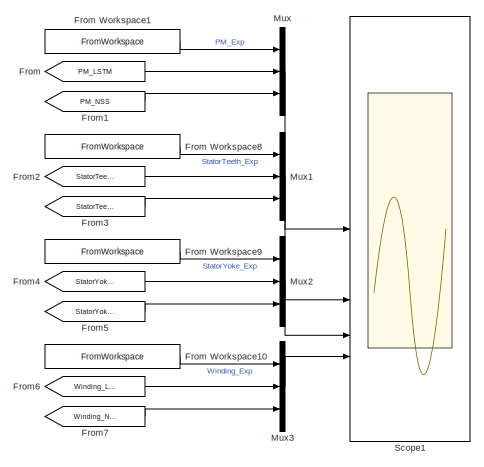
[diagram: root canvas - part 1/2, right side, full height]
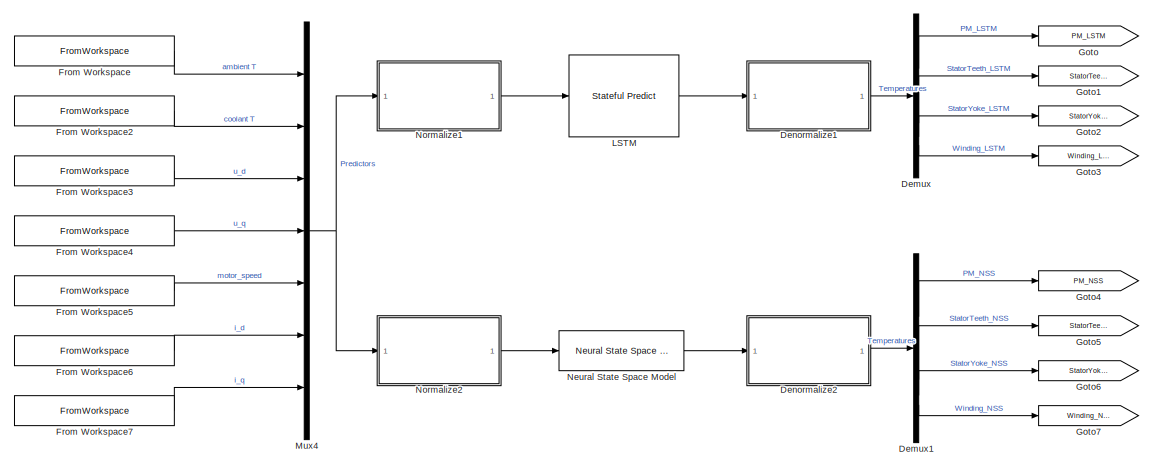
[diagram: root canvas - part 2/2, center side, full height]
MODEL slx_0a55b1d5f001
KIND model
CONFIG AbsTol = auto
CONFIG EnableMultiTasking = off
CONFIG FixedStep = 0.5
CONFIG MaxStep = auto
CONFIG MinStep = auto
CONFIG PreLoadFcn = % Load the Test data set for verification\nload Data\pmsm_temperature_data_large.mat;\n\n% Picking up a test profile for verification\nTestSet = timetables{57};\n\n% Seperate the predictors and the response\nTestSet_Predict = TestSet(:,1:7);\nTestSet_Response = TestSet(:,8:11);\n\n% Clear the original data to avoid duplication\nclear TestSet;\nclear timetables;\n\n% Load the trained LSTM and NSS Model\nload Mode...<+794ch>
CONFIG RelTol = 1e-3
CONFIG SampleTimeConstraint = Unconstrained
CONFIG SolverName = FixedStepAuto
CONFIG StartTime = 0
CONFIG StopTime = 5000
WORKSPACE source: mxarray member
WORKSPACE time = -1
BLOCK [Demux] Demux
BLOCK [Demux] Demux1
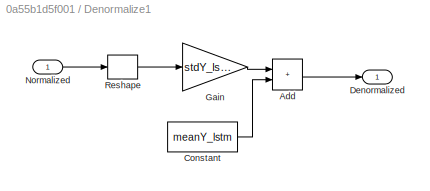
BLOCK [SubSystem] Denormalize1
BLOCK [Sum] Denormalize1/Add
  IconShape = rectangular
BLOCK [Constant] Denormalize1/Constant
  Value = meanY_lstm
BLOCK [Outport] Denormalize1/Denormalized
BLOCK [Gain] Denormalize1/Gain
  Gain = stdY_lstm
  OutDataTypeStr = single
BLOCK [Inport] Denormalize1/Normalized
BLOCK [Reshape] Denormalize1/Reshape
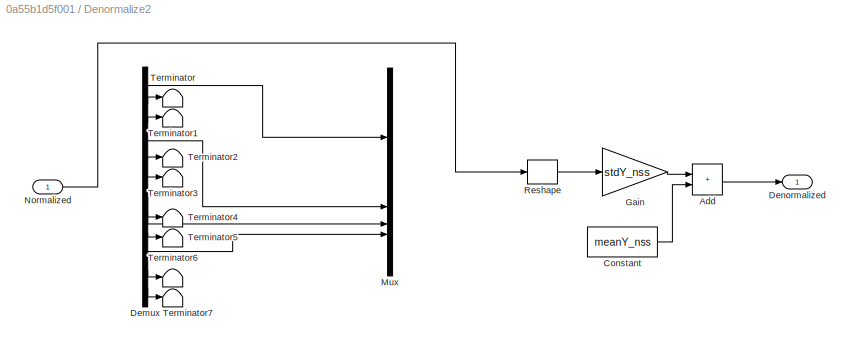
BLOCK [SubSystem] Denormalize2
BLOCK [Sum] Denormalize2/Add
  IconShape = rectangular
BLOCK [Constant] Denormalize2/Constant
  Value = meanY_nss
BLOCK [Demux] Denormalize2/Demux
  Outputs = 12
BLOCK [Outport] Denormalize2/Denormalized
BLOCK [Gain] Denormalize2/Gain
  Gain = stdY_nss
  OutDataTypeStr = single
BLOCK [Mux] Denormalize2/Mux
  DisplayOption = bar
BLOCK [Inport] Denormalize2/Normalized
BLOCK [Reshape] Denormalize2/Reshape
BLOCK [Terminator] Denormalize2/Terminator
BLOCK [Terminator] Denormalize2/Terminator1
BLOCK [Terminator] Denormalize2/Terminator2
BLOCK [Terminator] Denormalize2/Terminator3
BLOCK [Terminator] Denormalize2/Terminator4
BLOCK [Terminator] Denormalize2/Terminator5
BLOCK [Terminator] Denormalize2/Terminator6
BLOCK [Terminator] Denormalize2/Terminator7
BLOCK [From] From
  GotoTag = PM_LSTM
BLOCK [FromWorkspace] From Workspace
  VariableName = TestSet_Predict(:,1)
BLOCK [FromWorkspace] From Workspace1
  SampleTime = 5
  VariableName = TestSet_Response(:,1)
BLOCK [FromWorkspace] From Workspace10
  SampleTime = 5
  VariableName = TestSet_Response(:,4)
BLOCK [FromWorkspace] From Workspace2
  VariableName = TestSet_Predict(:,2)
BLOCK [FromWorkspace] From Workspace3
  VariableName = TestSet_Predict(:,3)
BLOCK [FromWorkspace] From Workspace4
  VariableName = TestSet_Predict(:,4)
BLOCK [FromWorkspace] From Workspace5
  VariableName = TestSet_Predict(:,5)
BLOCK [FromWorkspace] From Workspace6
  VariableName = TestSet_Predict(:,6)
BLOCK [FromWorkspace] From Workspace7
  VariableName = TestSet_Predict(:,7)
BLOCK [FromWorkspace] From Workspace8
  SampleTime = 5
  VariableName = TestSet_Response(:,2)
BLOCK [FromWorkspace] From Workspace9
  SampleTime = 5
  VariableName = TestSet_Response(:,3)
BLOCK [From] From1
  GotoTag = PM_NSS
BLOCK [From] From2
  GotoTag = StatorTeeth_LSTM
BLOCK [From] From3
  GotoTag = StatorTeeth_NSS
BLOCK [From] From4
  GotoTag = StatorYoke_LSTM
BLOCK [From] From5
  GotoTag = StatorYoke_NSS
BLOCK [From] From6
  GotoTag = Winding_LSTM
BLOCK [From] From7
  GotoTag = Winding_NSS
BLOCK [Goto] Goto
  GotoTag = PM_LSTM
BLOCK [Goto] Goto1
  GotoTag = StatorTeeth_LSTM
BLOCK [Goto] Goto2
  GotoTag = StatorYoke_LSTM
BLOCK [Goto] Goto3
  GotoTag = Winding_LSTM
BLOCK [Goto] Goto4
  GotoTag = PM_NSS
BLOCK [Goto] Goto5
  GotoTag = StatorTeeth_NSS
BLOCK [Goto] Goto6
  GotoTag = StatorYoke_NSS
BLOCK [Goto] Goto7
  GotoTag = Winding_NSS
BLOCK [Reference] LSTM  REF=deeplib/Stateful Predict
  SourceBlock = deeplib/Stateful Predict
  SourceType = Stateful Predict
BLOCK [Mux] Mux
  DisplayOption = bar
  Inputs = 3
BLOCK [Mux] Mux1
  DisplayOption = bar
  Inputs = 3
BLOCK [Mux] Mux2
  DisplayOption = bar
  Inputs = 3
BLOCK [Mux] Mux3
  DisplayOption = bar
  Inputs = 3
BLOCK [Mux] Mux4
  DisplayOption = bar
  Inputs = 7
BLOCK [Reference] Neural State Space Model  REF=slident/Models/Neural State Space Model  (lib defined in mdl_f7d4911ca73a)
  SourceBlock = slident/Models/Neural State Space Model
  SourceType = Neural State Space Model
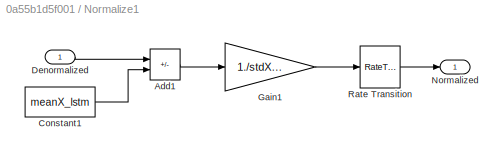
BLOCK [SubSystem] Normalize1
BLOCK [Sum] Normalize1/Add1
  IconShape = rectangular
  Inputs = +-
BLOCK [Constant] Normalize1/Constant1
  Value = meanX_lstm
BLOCK [Inport] Normalize1/Denormalized
BLOCK [Gain] Normalize1/Gain1
  Gain = 1./stdX_lstm
BLOCK [Outport] Normalize1/Normalized
BLOCK [RateTransition] Normalize1/Rate Transition
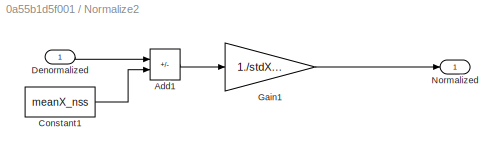
BLOCK [SubSystem] Normalize2
BLOCK [Sum] Normalize2/Add1
  IconShape = rectangular
  Inputs = +-
BLOCK [Constant] Normalize2/Constant1
  Value = meanX_nss
BLOCK [Inport] Normalize2/Denormalized
BLOCK [Gain] Normalize2/Gain1
  Gain = 1./stdX_nss
BLOCK [Outport] Normalize2/Normalized
BLOCK [Scope] Scope1
  Floating = off
  NumInputPorts = 4
  ScopeSpecificationString = Simulink.scopes.TimeScopeBlockCfg('CurrentConfiguration', extmgr.ConfigurationSet(extmgr.Configuration('Core','General UI',true,'FigureColor',[0 0 0]),extmgr.Configuration('Core','Source UI',true),extmgr.Configuration('Sources','WiredSimulink',true,'DataLoggingVariableName','ScopeData1'),extmgr.Configuration('Visuals','Time Domain',true,'SerializedDisplays',{struct('MinYLimReal','19.69379','MaxYLi...<+4417ch>
LINE Demux1:1 -> Goto4:1
LINE Demux1:2 -> Goto5:1
LINE Demux1:3 -> Goto6:1
LINE Demux1:4 -> Goto7:1
LINE Demux:1 -> Goto:1
LINE Demux:2 -> Goto1:1
LINE Demux:3 -> Goto2:1
LINE Demux:4 -> Goto3:1
LINE Denormalize1/Add:1 -> Denormalize1/Denormalized:1
LINE Denormalize1/Constant:1 -> Denormalize1/Add:2
LINE Denormalize1/Gain:1 -> Denormalize1/Add:1
LINE Denormalize1/Normalized:1 -> Denormalize1/Reshape:1
LINE Denormalize1/Reshape:1 -> Denormalize1/Gain:1
LINE Denormalize1:1 -> Demux:1
LINE Denormalize2/Add:1 -> Denormalize2/Denormalized:1
LINE Denormalize2/Constant:1 -> Denormalize2/Add:2
LINE Denormalize2/Demux:1 -> Denormalize2/Mux:1
LINE Denormalize2/Demux:10 -> Denormalize2/Mux:4
LINE Denormalize2/Demux:11 -> Denormalize2/Terminator6:1
LINE Denormalize2/Demux:12 -> Denormalize2/Terminator7:1
LINE Denormalize2/Demux:2 -> Denormalize2/Terminator:1
LINE Denormalize2/Demux:3 -> Denormalize2/Terminator1:1
LINE Denormalize2/Demux:4 -> Denormalize2/Mux:2
LINE Denormalize2/Demux:5 -> Denormalize2/Terminator2:1
LINE Denormalize2/Demux:6 -> Denormalize2/Terminator3:1
LINE Denormalize2/Demux:7 -> Denormalize2/Mux:3
LINE Denormalize2/Demux:8 -> Denormalize2/Terminator4:1
LINE Denormalize2/Demux:9 -> Denormalize2/Terminator5:1
LINE Denormalize2/Gain:1 -> Denormalize2/Add:1
LINE Denormalize2/Normalized:1 -> Denormalize2/Reshape:1
LINE Denormalize2/Reshape:1 -> Denormalize2/Gain:1
LINE Denormalize2:1 -> Demux1:1
LINE From Workspace10:1 -> Mux3:1
LINE From Workspace1:1 -> Mux:1
LINE From Workspace2:1 -> Mux4:2
LINE From Workspace3:1 -> Mux4:3
LINE From Workspace4:1 -> Mux4:4
LINE From Workspace5:1 -> Mux4:5
LINE From Workspace6:1 -> Mux4:6
LINE From Workspace7:1 -> Mux4:7
LINE From Workspace8:1 -> Mux1:1
LINE From Workspace9:1 -> Mux2:1
LINE From Workspace:1 -> Mux4:1
LINE From1:1 -> Mux:3
LINE From2:1 -> Mux1:2
LINE From3:1 -> Mux1:3
LINE From4:1 -> Mux2:2
LINE From5:1 -> Mux2:3
LINE From6:1 -> Mux3:2
LINE From7:1 -> Mux3:3
LINE From:1 -> Mux:2
LINE LSTM:1 -> Denormalize1:1
LINE Mux1:1 -> Scope1:2
LINE Mux2:1 -> Scope1:3
LINE Mux3:1 -> Scope1:4
NET Mux4:1 -> Normalize1:1, Normalize2:1
LINE Mux:1 -> Scope1:1
LINE Neural State Space Model:1 -> Denormalize2:1
LINE Normalize1/Add1:1 -> Normalize1/Gain1:1
LINE Normalize1/Constant1:1 -> Normalize1/Add1:2
LINE Normalize1/Denormalized:1 -> Normalize1/Add1:1
LINE Normalize1/Gain1:1 -> Normalize1/Rate Transition:1
LINE Normalize1/Rate Transition:1 -> Normalize1/Normalized:1
LINE Normalize1:1 -> LSTM:1
LINE Normalize2/Add1:1 -> Normalize2/Gain1:1
LINE Normalize2/Constant1:1 -> Normalize2/Add1:2
LINE Normalize2/Denormalized:1 -> Normalize2/Add1:1
LINE Normalize2/Gain1:1 -> Normalize2/Normalized:1
LINE Normalize2:1 -> Neural State Space Model:1
note: NET lines group one-source signal fan-out (src -> all destinations, sorted); 1:1 wires keep LINE
